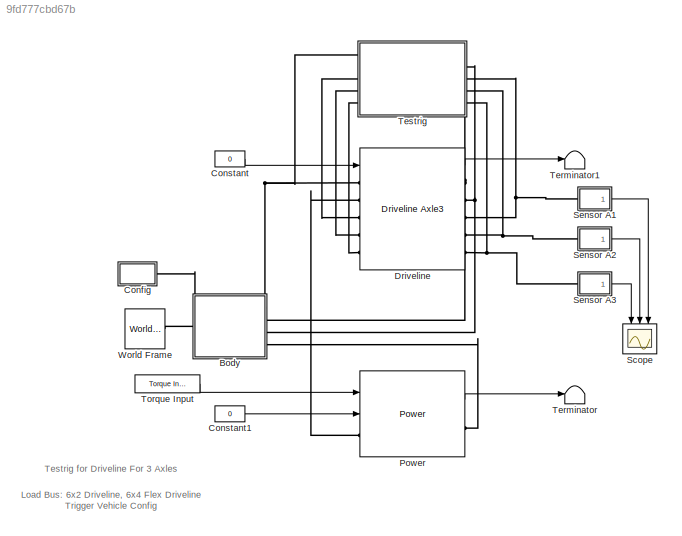
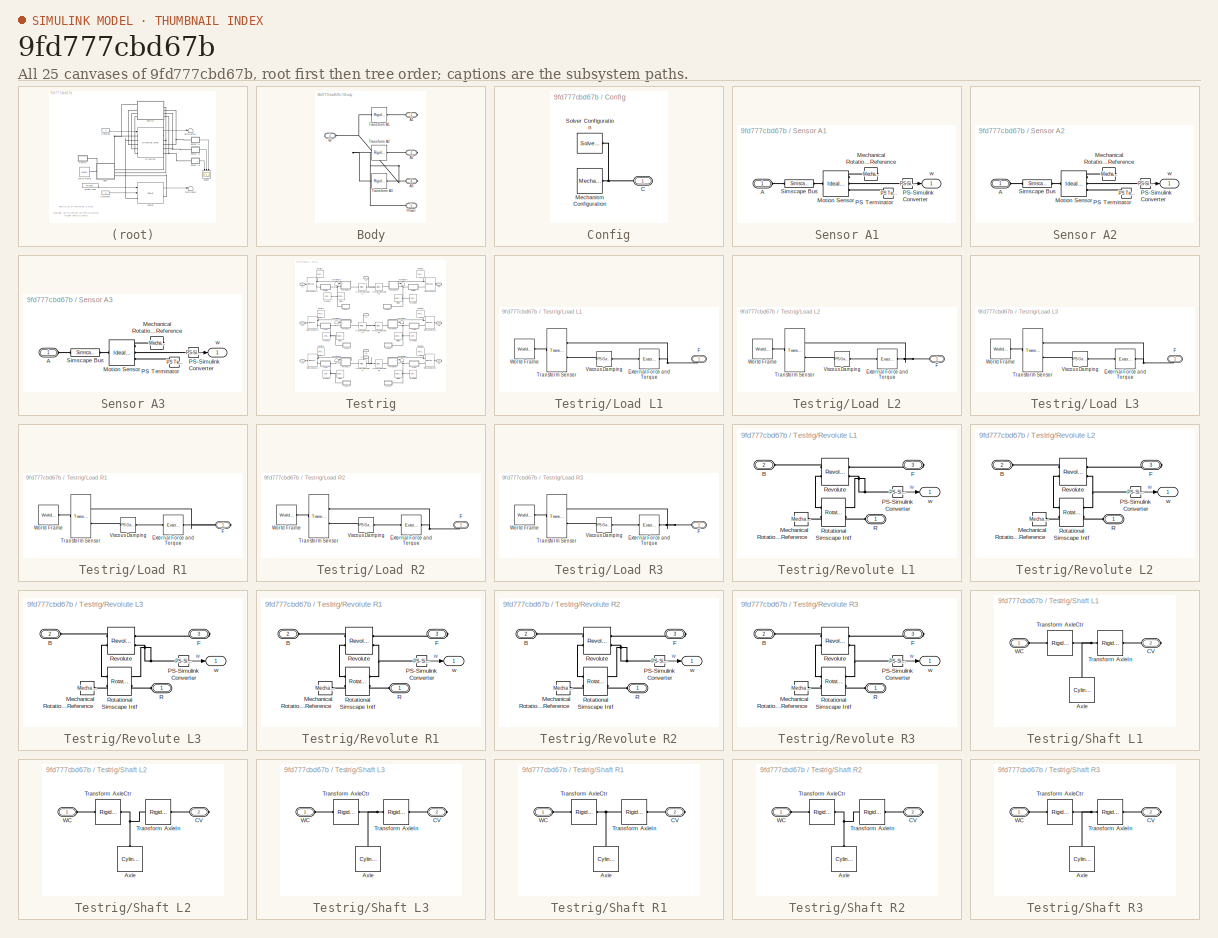
[diagram: thumbnail index - all 25 canvases of the model, root first then tree order]
MODEL slx_9fd777cbd67b
KIND model
CONFIG AbsTol = auto
CONFIG EnableMultiTasking = off
CONFIG FixedStep = auto
CONFIG MaxStep = auto
CONFIG MinStep = auto
CONFIG RelTol = 1e-3
CONFIG SampleTimeConstraint = Unconstrained
CONFIG SolverName = ode23t
CONFIG StartTime = 0.0
CONFIG StopTime = 10.0
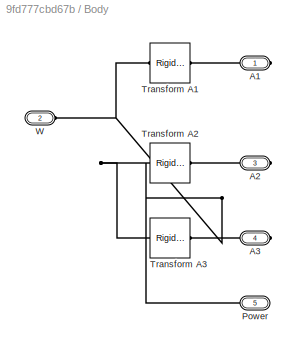
BLOCK [SubSystem] Body
  Ports = [0, 0, 0, 0, 0, 1, 4]
  RequestExecContextInheritance = off
BLOCK [PMIOPort] Body/ Power
  Port = 5
  Side = Right
BLOCK [PMIOPort] Body/A1
  Side = Right
BLOCK [PMIOPort] Body/A2
  Port = 3
  Side = Right
BLOCK [PMIOPort] Body/A3
  Port = 4
  Side = Right
BLOCK [Reference] Body/Transform A1   REF=sm_lib/Frames and
Transforms/Rigid
Transform
  Ports = [0, 0, 0, 0, 0, 1, 1]
  SourceBlock = sm_lib/Frames and\nTransforms/Rigid\nTransform
  SourceProductBaseCode = MS
  SourceType = Rigid\nTransform
BLOCK [Reference] Body/Transform A2  REF=sm_lib/Frames and
Transforms/Rigid
Transform
  Ports = [0, 0, 0, 0, 0, 1, 1]
  SourceBlock = sm_lib/Frames and\nTransforms/Rigid\nTransform
  SourceProductBaseCode = MS
  SourceType = Rigid\nTransform
BLOCK [Reference] Body/Transform A3  REF=sm_lib/Frames and
Transforms/Rigid
Transform
  Ports = [0, 0, 0, 0, 0, 1, 1]
  SourceBlock = sm_lib/Frames and\nTransforms/Rigid\nTransform
  SourceProductBaseCode = MS
  SourceType = Rigid\nTransform
BLOCK [PMIOPort] Body/W
  Port = 2
  Side = Left
BLOCK [SubSystem] Config
  Ports = [0, 0, 0, 0, 0, 0, 1]
  RequestExecContextInheritance = off
BLOCK [PMIOPort] Config/C
  Side = Right
BLOCK [Reference] Config/Mechanism Configuration  REF=sm_lib/Utilities/Mechanism
Configuration
  Ports = [0, 0, 0, 0, 0, 0, 1]
  SourceBlock = sm_lib/Utilities/Mechanism\nConfiguration
  SourceProductBaseCode = MS
  SourceType = Mechanism\nConfiguration
BLOCK [Reference] Config/Solver Configuration  REF=nesl_utility/Solver
Configuration
  Ports = [0, 0, 0, 0, 0, 0, 1]
  SourceBlock = nesl_utility/Solver\nConfiguration
  SourceProductBaseCode = SS,PW,VE
  SourceType = Solver\nConfiguration
BLOCK [Constant] Constant
  Value = 0
BLOCK [Constant] Constant1
  Value = 0
BLOCK [Reference] Driveline  REF=Driveline_Axle3/Driveline Axle3
  AttributesFormatString = %<ActiveVariant>
  Ports = [1, 1, 0, 0, 0, 5, 5]
  SourceBlock = Driveline_Axle3/Driveline Axle3
  SourceType = Variants for Driveline
BLOCK [Reference] Power  REF=Power_Systems/Power
  AttributesFormatString = %<ActiveVariant>
  Ports = [2, 1, 0, 0, 0, 1, 1]
  SourceBlock = Power_Systems/Power
  SourceType = Variants for Power
BLOCK [Scope] Scope
  Floating = off
  NameLocation = left
  NumInputPorts = 3
  Ports = [3]
  ScopeSpecificationString = Simulink.scopes.TimeScopeBlockCfg('CurrentConfiguration', extmgr.ConfigurationSet(extmgr.Configuration('Core','General UI',true),extmgr.Configuration('Core','Source UI',true),extmgr.Configuration('Sources','WiredSimulink',true),extmgr.Configuration('Visuals','Time Domain',true,'SerializedDisplays',{struct('MinYLimReal','-40.00000','MaxYLimReal','360.00000','YLabelReal','','MinYLimMag','0.00000','M...<+1700ch>
BLOCK [SubSystem] Sensor A1
  Ports = [0, 1, 0, 0, 0, 1]
  RequestExecContextInheritance = off
BLOCK [PMIOPort] Sensor A1/A
  Side = Left
BLOCK [Reference] Sensor A1/Mechanical Rotational Reference  REF=fl_lib/Mechanical/Rotational Elements/Mechanical
Rotational Reference
  NameLocation = top
  Ports = [0, 0, 0, 0, 0, 1]
  SourceBlock = fl_lib/Mechanical/Rotational Elements/Mechanical\nRotational Reference
  SourceProductBaseCode = PW,SS,VE
  SourceType = Mechanical\nRotational Reference
BLOCK [Reference] Sensor A1/Motion Sensor  REF=fl_lib/Mechanical/Mechanical Sensors/Ideal Rotational
Motion Sensor
  Ports = [0, 0, 0, 0, 0, 1, 3]
  SourceBlock = fl_lib/Mechanical/Mechanical Sensors/Ideal Rotational\nMotion Sensor
  SourceProductBaseCode = PW,SS,VE
  SourceType = Ideal Rotational\nMotion Sensor
BLOCK [Reference] Sensor A1/PS Terminator  REF=fl_lib/Physical Signals/Sinks/PS Terminator
  Ports = [0, 0, 0, 0, 0, 1]
  SourceBlock = fl_lib/Physical Signals/Sinks/PS Terminator
  SourceProductBaseCode = PW,SS,VE
  SourceType = PS Terminator
BLOCK [Reference] Sensor A1/PS-Simulink Converter  REF=nesl_utility/PS-Simulink
Converter
  Ports = [0, 1, 0, 0, 0, 1]
  SourceBlock = nesl_utility/PS-Simulink\nConverter
  SourceProductBaseCode = SS,PW,VE
  SourceType = PS-Simulink\nConverter
BLOCK [SimscapeBus] Sensor A1/Simscape Bus
  HierarchyStrings = Axle1D
  Ports = [0, 0, 0, 0, 0, 1, 1]
BLOCK [Outport] Sensor A1/w
  VectorParamsAs1DForOutWhenUnconnected = off
BLOCK [SubSystem] Sensor A2
  Ports = [0, 1, 0, 0, 0, 1]
  RequestExecContextInheritance = off
BLOCK [PMIOPort] Sensor A2/A
  Side = Left
BLOCK [Reference] Sensor A2/Mechanical Rotational Reference  REF=fl_lib/Mechanical/Rotational Elements/Mechanical
Rotational Reference
  NameLocation = top
  Ports = [0, 0, 0, 0, 0, 1]
  SourceBlock = fl_lib/Mechanical/Rotational Elements/Mechanical\nRotational Reference
  SourceProductBaseCode = PW,SS,VE
  SourceType = Mechanical\nRotational Reference
BLOCK [Reference] Sensor A2/Motion Sensor  REF=fl_lib/Mechanical/Mechanical Sensors/Ideal Rotational
Motion Sensor
  Ports = [0, 0, 0, 0, 0, 1, 3]
  SourceBlock = fl_lib/Mechanical/Mechanical Sensors/Ideal Rotational\nMotion Sensor
  SourceProductBaseCode = PW,SS,VE
  SourceType = Ideal Rotational\nMotion Sensor
BLOCK [Reference] Sensor A2/PS Terminator  REF=fl_lib/Physical Signals/Sinks/PS Terminator
  Ports = [0, 0, 0, 0, 0, 1]
  SourceBlock = fl_lib/Physical Signals/Sinks/PS Terminator
  SourceProductBaseCode = PW,SS,VE
  SourceType = PS Terminator
BLOCK [Reference] Sensor A2/PS-Simulink Converter  REF=nesl_utility/PS-Simulink
Converter
  Ports = [0, 1, 0, 0, 0, 1]
  SourceBlock = nesl_utility/PS-Simulink\nConverter
  SourceProductBaseCode = SS,PW,VE
  SourceType = PS-Simulink\nConverter
BLOCK [SimscapeBus] Sensor A2/Simscape Bus
  HierarchyStrings = Axle1D
  Ports = [0, 0, 0, 0, 0, 1, 1]
BLOCK [Outport] Sensor A2/w
  VectorParamsAs1DForOutWhenUnconnected = off
BLOCK [SubSystem] Sensor A3
  Ports = [0, 1, 0, 0, 0, 1]
  RequestExecContextInheritance = off
BLOCK [PMIOPort] Sensor A3/A
  Side = Left
BLOCK [Reference] Sensor A3/Mechanical Rotational Reference  REF=fl_lib/Mechanical/Rotational Elements/Mechanical
Rotational Reference
  NameLocation = top
  Ports = [0, 0, 0, 0, 0, 1]
  SourceBlock = fl_lib/Mechanical/Rotational Elements/Mechanical\nRotational Reference
  SourceProductBaseCode = PW,SS,VE
  SourceType = Mechanical\nRotational Reference
BLOCK [Reference] Sensor A3/Motion Sensor  REF=fl_lib/Mechanical/Mechanical Sensors/Ideal Rotational
Motion Sensor
  Ports = [0, 0, 0, 0, 0, 1, 3]
  SourceBlock = fl_lib/Mechanical/Mechanical Sensors/Ideal Rotational\nMotion Sensor
  SourceProductBaseCode = PW,SS,VE
  SourceType = Ideal Rotational\nMotion Sensor
BLOCK [Reference] Sensor A3/PS Terminator  REF=fl_lib/Physical Signals/Sinks/PS Terminator
  Ports = [0, 0, 0, 0, 0, 1]
  SourceBlock = fl_lib/Physical Signals/Sinks/PS Terminator
  SourceProductBaseCode = PW,SS,VE
  SourceType = PS Terminator
BLOCK [Reference] Sensor A3/PS-Simulink Converter  REF=nesl_utility/PS-Simulink
Converter
  Ports = [0, 1, 0, 0, 0, 1]
  SourceBlock = nesl_utility/PS-Simulink\nConverter
  SourceProductBaseCode = SS,PW,VE
  SourceType = PS-Simulink\nConverter
BLOCK [SimscapeBus] Sensor A3/Simscape Bus
  HierarchyStrings = Axle1D
  Ports = [0, 0, 0, 0, 0, 1, 1]
BLOCK [Outport] Sensor A3/w
  VectorParamsAs1DForOutWhenUnconnected = off
BLOCK [Terminator] Terminator
BLOCK [Terminator] Terminator1
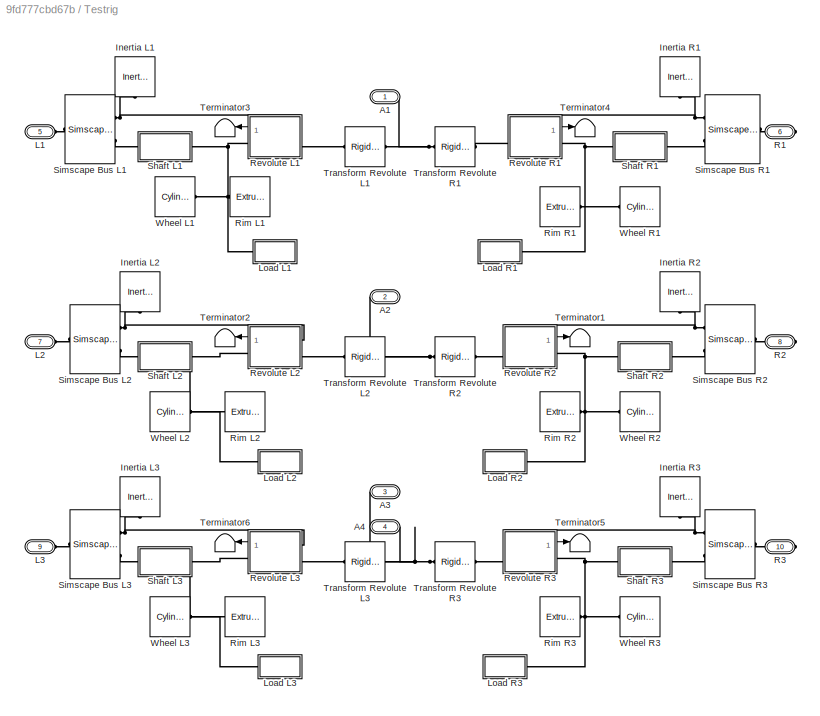
BLOCK [SubSystem] Testrig
  Ports = [0, 0, 0, 0, 0, 5, 5]
  RequestExecContextInheritance = off
BLOCK [PMIOPort] Testrig/A1
  Side = Left
BLOCK [PMIOPort] Testrig/A2
  Port = 2
  Side = Right
BLOCK [PMIOPort] Testrig/A3
  Port = 3
  Side = Right
BLOCK [PMIOPort] Testrig/A4
  Port = 4
  Side = Left
BLOCK [Reference] Testrig/Inertia L1  REF=fl_lib/Mechanical/Rotational Elements/Inertia
  NameLocation = right
  Ports = [0, 0, 0, 0, 0, 1]
  SourceBlock = fl_lib/Mechanical/Rotational Elements/Inertia
  SourceProductBaseCode = PW,SS,VE
  SourceType = Inertia
BLOCK [Reference] Testrig/Inertia L2  REF=fl_lib/Mechanical/Rotational Elements/Inertia
  NameLocation = right
  Ports = [0, 0, 0, 0, 0, 1]
  SourceBlock = fl_lib/Mechanical/Rotational Elements/Inertia
  SourceProductBaseCode = PW,SS,VE
  SourceType = Inertia
BLOCK [Reference] Testrig/Inertia L3  REF=fl_lib/Mechanical/Rotational Elements/Inertia
  NameLocation = right
  Ports = [0, 0, 0, 0, 0, 1]
  SourceBlock = fl_lib/Mechanical/Rotational Elements/Inertia
  SourceProductBaseCode = PW,SS,VE
  SourceType = Inertia
BLOCK [Reference] Testrig/Inertia R1  REF=fl_lib/Mechanical/Rotational Elements/Inertia
  NameLocation = left
  Ports = [0, 0, 0, 0, 0, 1]
  SourceBlock = fl_lib/Mechanical/Rotational Elements/Inertia
  SourceProductBaseCode = PW,SS,VE
  SourceType = Inertia
BLOCK [Reference] Testrig/Inertia R2  REF=fl_lib/Mechanical/Rotational Elements/Inertia
  NameLocation = left
  Ports = [0, 0, 0, 0, 0, 1]
  SourceBlock = fl_lib/Mechanical/Rotational Elements/Inertia
  SourceProductBaseCode = PW,SS,VE
  SourceType = Inertia
BLOCK [Reference] Testrig/Inertia R3  REF=fl_lib/Mechanical/Rotational Elements/Inertia
  NameLocation = left
  Ports = [0, 0, 0, 0, 0, 1]
  SourceBlock = fl_lib/Mechanical/Rotational Elements/Inertia
  SourceProductBaseCode = PW,SS,VE
  SourceType = Inertia
BLOCK [PMIOPort] Testrig/L1
  Port = 5
  Side = Left
BLOCK [PMIOPort] Testrig/L2
  Port = 7
  Side = Left
BLOCK [PMIOPort] Testrig/L3
  Port = 9
  Side = Left
BLOCK [SubSystem] Testrig/Load L1
  Ports = [0, 0, 0, 0, 0, 0, 1]
  RequestExecContextInheritance = off
BLOCK [Reference] Testrig/Load L1/External Force and Torque  REF=sm_lib/Forces and
Torques/External Force
and Torque
  Ports = [0, 0, 0, 0, 0, 1, 1]
  SourceBlock = sm_lib/Forces and\nTorques/External Force\nand Torque
  SourceProductBaseCode = MS
  SourceType = External Force\nand Torque
BLOCK [PMIOPort] Testrig/Load L1/F
  Side = Right
BLOCK [Reference] Testrig/Load L1/Transform Sensor  REF=sm_lib/Frames and
Transforms/Transform
Sensor
  Ports = [0, 0, 0, 0, 0, 1, 2]
  SourceBlock = sm_lib/Frames and\nTransforms/Transform\nSensor
  SourceProductBaseCode = MS
  SourceType = Transform\nSensor
BLOCK [Reference] Testrig/Load L1/Viscous Damping  REF=fl_ps_legacy_lib/Legacy Physical
Signals/Functions/PS Gain
  Ports = [0, 0, 0, 0, 0, 1, 1]
  SourceBlock = fl_ps_legacy_lib/Legacy Physical\nSignals/Functions/PS Gain
  SourceProductBaseCode = PW,SS,VE
  SourceType = PS Gain
BLOCK [Reference] Testrig/Load L1/World Frame  REF=sm_lib/Frames and
Transforms/World Frame
  Ports = [0, 0, 0, 0, 0, 0, 1]
  SourceBlock = sm_lib/Frames and\nTransforms/World Frame
  SourceProductBaseCode = MS
  SourceType = World Frame
BLOCK [SubSystem] Testrig/Load L2
  Ports = [0, 0, 0, 0, 0, 0, 1]
  RequestExecContextInheritance = off
BLOCK [Reference] Testrig/Load L2/External Force and Torque  REF=sm_lib/Forces and
Torques/External Force
and Torque
  Ports = [0, 0, 0, 0, 0, 1, 1]
  SourceBlock = sm_lib/Forces and\nTorques/External Force\nand Torque
  SourceProductBaseCode = MS
  SourceType = External Force\nand Torque
BLOCK [PMIOPort] Testrig/Load L2/F
  Side = Right
BLOCK [Reference] Testrig/Load L2/Transform Sensor  REF=sm_lib/Frames and
Transforms/Transform
Sensor
  Ports = [0, 0, 0, 0, 0, 1, 2]
  SourceBlock = sm_lib/Frames and\nTransforms/Transform\nSensor
  SourceProductBaseCode = MS
  SourceType = Transform\nSensor
BLOCK [Reference] Testrig/Load L2/Viscous Damping  REF=fl_ps_legacy_lib/Legacy Physical
Signals/Functions/PS Gain
  Ports = [0, 0, 0, 0, 0, 1, 1]
  SourceBlock = fl_ps_legacy_lib/Legacy Physical\nSignals/Functions/PS Gain
  SourceProductBaseCode = PW,SS,VE
  SourceType = PS Gain
BLOCK [Reference] Testrig/Load L2/World Frame  REF=sm_lib/Frames and
Transforms/World Frame
  Ports = [0, 0, 0, 0, 0, 0, 1]
  SourceBlock = sm_lib/Frames and\nTransforms/World Frame
  SourceProductBaseCode = MS
  SourceType = World Frame
BLOCK [SubSystem] Testrig/Load L3
  Ports = [0, 0, 0, 0, 0, 0, 1]
  RequestExecContextInheritance = off
BLOCK [Reference] Testrig/Load L3/External Force and Torque  REF=sm_lib/Forces and
Torques/External Force
and Torque
  Ports = [0, 0, 0, 0, 0, 1, 1]
  SourceBlock = sm_lib/Forces and\nTorques/External Force\nand Torque
  SourceProductBaseCode = MS
  SourceType = External Force\nand Torque
BLOCK [PMIOPort] Testrig/Load L3/F
  Side = Right
BLOCK [Reference] Testrig/Load L3/Transform Sensor  REF=sm_lib/Frames and
Transforms/Transform
Sensor
  Ports = [0, 0, 0, 0, 0, 1, 2]
  SourceBlock = sm_lib/Frames and\nTransforms/Transform\nSensor
  SourceProductBaseCode = MS
  SourceType = Transform\nSensor
BLOCK [Reference] Testrig/Load L3/Viscous Damping  REF=fl_ps_legacy_lib/Legacy Physical
Signals/Functions/PS Gain
  Ports = [0, 0, 0, 0, 0, 1, 1]
  SourceBlock = fl_ps_legacy_lib/Legacy Physical\nSignals/Functions/PS Gain
  SourceProductBaseCode = PW,SS,VE
  SourceType = PS Gain
BLOCK [Reference] Testrig/Load L3/World Frame  REF=sm_lib/Frames and
Transforms/World Frame
  Ports = [0, 0, 0, 0, 0, 0, 1]
  SourceBlock = sm_lib/Frames and\nTransforms/World Frame
  SourceProductBaseCode = MS
  SourceType = World Frame
BLOCK [SubSystem] Testrig/Load R1
  Ports = [0, 0, 0, 0, 0, 0, 1]
  RequestExecContextInheritance = off
BLOCK [Reference] Testrig/Load R1/External Force and Torque  REF=sm_lib/Forces and
Torques/External Force
and Torque
  Ports = [0, 0, 0, 0, 0, 1, 1]
  SourceBlock = sm_lib/Forces and\nTorques/External Force\nand Torque
  SourceProductBaseCode = MS
  SourceType = External Force\nand Torque
BLOCK [PMIOPort] Testrig/Load R1/F
  Side = Right
BLOCK [Reference] Testrig/Load R1/Transform Sensor  REF=sm_lib/Frames and
Transforms/Transform
Sensor
  Ports = [0, 0, 0, 0, 0, 1, 2]
  SourceBlock = sm_lib/Frames and\nTransforms/Transform\nSensor
  SourceProductBaseCode = MS
  SourceType = Transform\nSensor
BLOCK [Reference] Testrig/Load R1/Viscous Damping  REF=fl_ps_legacy_lib/Legacy Physical
Signals/Functions/PS Gain
  Ports = [0, 0, 0, 0, 0, 1, 1]
  SourceBlock = fl_ps_legacy_lib/Legacy Physical\nSignals/Functions/PS Gain
  SourceProductBaseCode = PW,SS,VE
  SourceType = PS Gain
BLOCK [Reference] Testrig/Load R1/World Frame  REF=sm_lib/Frames and
Transforms/World Frame
  Ports = [0, 0, 0, 0, 0, 0, 1]
  SourceBlock = sm_lib/Frames and\nTransforms/World Frame
  SourceProductBaseCode = MS
  SourceType = World Frame
BLOCK [SubSystem] Testrig/Load R2
  Ports = [0, 0, 0, 0, 0, 0, 1]
  RequestExecContextInheritance = off
BLOCK [Reference] Testrig/Load R2/External Force and Torque  REF=sm_lib/Forces and
Torques/External Force
and Torque
  Ports = [0, 0, 0, 0, 0, 1, 1]
  SourceBlock = sm_lib/Forces and\nTorques/External Force\nand Torque
  SourceProductBaseCode = MS
  SourceType = External Force\nand Torque
BLOCK [PMIOPort] Testrig/Load R2/F
  Side = Right
BLOCK [Reference] Testrig/Load R2/Transform Sensor  REF=sm_lib/Frames and
Transforms/Transform
Sensor
  Ports = [0, 0, 0, 0, 0, 1, 2]
  SourceBlock = sm_lib/Frames and\nTransforms/Transform\nSensor
  SourceProductBaseCode = MS
  SourceType = Transform\nSensor
BLOCK [Reference] Testrig/Load R2/Viscous Damping  REF=fl_ps_legacy_lib/Legacy Physical
Signals/Functions/PS Gain
  Ports = [0, 0, 0, 0, 0, 1, 1]
  SourceBlock = fl_ps_legacy_lib/Legacy Physical\nSignals/Functions/PS Gain
  SourceProductBaseCode = PW,SS,VE
  SourceType = PS Gain
BLOCK [Reference] Testrig/Load R2/World Frame  REF=sm_lib/Frames and
Transforms/World Frame
  Ports = [0, 0, 0, 0, 0, 0, 1]
  SourceBlock = sm_lib/Frames and\nTransforms/World Frame
  SourceProductBaseCode = MS
  SourceType = World Frame
BLOCK [SubSystem] Testrig/Load R3
  Ports = [0, 0, 0, 0, 0, 0, 1]
  RequestExecContextInheritance = off
BLOCK [Reference] Testrig/Load R3/External Force and Torque  REF=sm_lib/Forces and
Torques/External Force
and Torque
  Ports = [0, 0, 0, 0, 0, 1, 1]
  SourceBlock = sm_lib/Forces and\nTorques/External Force\nand Torque
  SourceProductBaseCode = MS
  SourceType = External Force\nand Torque
BLOCK [PMIOPort] Testrig/Load R3/F
  Side = Right
BLOCK [Reference] Testrig/Load R3/Transform Sensor  REF=sm_lib/Frames and
Transforms/Transform
Sensor
  Ports = [0, 0, 0, 0, 0, 1, 2]
  SourceBlock = sm_lib/Frames and\nTransforms/Transform\nSensor
  SourceProductBaseCode = MS
  SourceType = Transform\nSensor
BLOCK [Reference] Testrig/Load R3/Viscous Damping  REF=fl_ps_legacy_lib/Legacy Physical
Signals/Functions/PS Gain
  Ports = [0, 0, 0, 0, 0, 1, 1]
  SourceBlock = fl_ps_legacy_lib/Legacy Physical\nSignals/Functions/PS Gain
  SourceProductBaseCode = PW,SS,VE
  SourceType = PS Gain
BLOCK [Reference] Testrig/Load R3/World Frame  REF=sm_lib/Frames and
Transforms/World Frame
  Ports = [0, 0, 0, 0, 0, 0, 1]
  SourceBlock = sm_lib/Frames and\nTransforms/World Frame
  SourceProductBaseCode = MS
  SourceType = World Frame
BLOCK [PMIOPort] Testrig/R1
  Port = 6
  Side = Right
BLOCK [PMIOPort] Testrig/R2
  Port = 8
  Side = Right
BLOCK [PMIOPort] Testrig/R3
  Port = 10
  Side = Right
BLOCK [SubSystem] Testrig/Revolute L1
  Ports = [0, 1, 0, 0, 0, 2, 1]
  RequestExecContextInheritance = off
BLOCK [PMIOPort] Testrig/Revolute L1/B
  Port = 2
  Side = Left
BLOCK [PMIOPort] Testrig/Revolute L1/F
  Port = 3
  Side = Right
BLOCK [Reference] Testrig/Revolute L1/Mechanical Rotational Reference  REF=fl_lib/Mechanical/Rotational Elements/Mechanical
Rotational Reference
  Ports = [0, 0, 0, 0, 0, 1]
  SourceBlock = fl_lib/Mechanical/Rotational Elements/Mechanical\nRotational Reference
  SourceProductBaseCode = PW,SS,VE
  SourceType = Mechanical\nRotational Reference
BLOCK [Reference] Testrig/Revolute L1/PS-Simulink Converter  REF=nesl_utility/PS-Simulink
Converter
  Ports = [0, 1, 0, 0, 0, 1]
  SourceBlock = nesl_utility/PS-Simulink\nConverter
  SourceProductBaseCode = SS,PW,VE
  SourceType = PS-Simulink\nConverter
BLOCK [PMIOPort] Testrig/Revolute L1/R
  Side = Left
BLOCK [Reference] Testrig/Revolute L1/Revolute  REF=sm_lib/Joints/Revolute Joint
  Ports = [0, 0, 0, 0, 0, 2, 2]
  SourceBlock = sm_lib/Joints/Revolute Joint
  SourceProductBaseCode = MS
  SourceType = Revolute Joint
BLOCK [Reference] Testrig/Revolute L1/Rotational Simscape Intf  REF=sm_car_lib/Utilities/Rotational  (lib defined in slx_05426f0848b6, slx_5dc2867fb1c9)
Simscape Intf
  Ports = [0, 0, 0, 0, 0, 2, 2]
  SourceBlock = sm_car_lib/Utilities/Rotational\nSimscape Intf
  SourceType = SubSystem
BLOCK [Outport] Testrig/Revolute L1/w
  VectorParamsAs1DForOutWhenUnconnected = off
BLOCK [SubSystem] Testrig/Revolute L2
  Ports = [0, 1, 0, 0, 0, 2, 1]
  RequestExecContextInheritance = off
BLOCK [PMIOPort] Testrig/Revolute L2/B
  Port = 2
  Side = Left
BLOCK [PMIOPort] Testrig/Revolute L2/F
  Port = 3
  Side = Right
BLOCK [Reference] Testrig/Revolute L2/Mechanical Rotational Reference  REF=fl_lib/Mechanical/Rotational Elements/Mechanical
Rotational Reference
  Ports = [0, 0, 0, 0, 0, 1]
  SourceBlock = fl_lib/Mechanical/Rotational Elements/Mechanical\nRotational Reference
  SourceProductBaseCode = PW,SS,VE
  SourceType = Mechanical\nRotational Reference
BLOCK [Reference] Testrig/Revolute L2/PS-Simulink Converter  REF=nesl_utility/PS-Simulink
Converter
  Ports = [0, 1, 0, 0, 0, 1]
  SourceBlock = nesl_utility/PS-Simulink\nConverter
  SourceProductBaseCode = SS,PW,VE
  SourceType = PS-Simulink\nConverter
BLOCK [PMIOPort] Testrig/Revolute L2/R
  Side = Left
BLOCK [Reference] Testrig/Revolute L2/Revolute  REF=sm_lib/Joints/Revolute Joint
  Ports = [0, 0, 0, 0, 0, 2, 2]
  SourceBlock = sm_lib/Joints/Revolute Joint
  SourceProductBaseCode = MS
  SourceType = Revolute Joint
BLOCK [Reference] Testrig/Revolute L2/Rotational Simscape Intf  REF=sm_car_lib/Utilities/Rotational  (lib defined in slx_05426f0848b6, slx_5dc2867fb1c9)
Simscape Intf
  Ports = [0, 0, 0, 0, 0, 2, 2]
  SourceBlock = sm_car_lib/Utilities/Rotational\nSimscape Intf
  SourceType = SubSystem
BLOCK [Outport] Testrig/Revolute L2/w
  VectorParamsAs1DForOutWhenUnconnected = off
BLOCK [SubSystem] Testrig/Revolute L3
  Ports = [0, 1, 0, 0, 0, 2, 1]
  RequestExecContextInheritance = off
BLOCK [PMIOPort] Testrig/Revolute L3/B
  Port = 2
  Side = Left
BLOCK [PMIOPort] Testrig/Revolute L3/F
  Port = 3
  Side = Right
BLOCK [Reference] Testrig/Revolute L3/Mechanical Rotational Reference  REF=fl_lib/Mechanical/Rotational Elements/Mechanical
Rotational Reference
  Ports = [0, 0, 0, 0, 0, 1]
  SourceBlock = fl_lib/Mechanical/Rotational Elements/Mechanical\nRotational Reference
  SourceProductBaseCode = PW,SS,VE
  SourceType = Mechanical\nRotational Reference
BLOCK [Reference] Testrig/Revolute L3/PS-Simulink Converter  REF=nesl_utility/PS-Simulink
Converter
  Ports = [0, 1, 0, 0, 0, 1]
  SourceBlock = nesl_utility/PS-Simulink\nConverter
  SourceProductBaseCode = SS,PW,VE
  SourceType = PS-Simulink\nConverter
BLOCK [PMIOPort] Testrig/Revolute L3/R
  Side = Left
BLOCK [Reference] Testrig/Revolute L3/Revolute  REF=sm_lib/Joints/Revolute Joint
  Ports = [0, 0, 0, 0, 0, 2, 2]
  SourceBlock = sm_lib/Joints/Revolute Joint
  SourceProductBaseCode = MS
  SourceType = Revolute Joint
BLOCK [Reference] Testrig/Revolute L3/Rotational Simscape Intf  REF=sm_car_lib/Utilities/Rotational  (lib defined in slx_05426f0848b6, slx_5dc2867fb1c9)
Simscape Intf
  Ports = [0, 0, 0, 0, 0, 2, 2]
  SourceBlock = sm_car_lib/Utilities/Rotational\nSimscape Intf
  SourceType = SubSystem
BLOCK [Outport] Testrig/Revolute L3/w
  VectorParamsAs1DForOutWhenUnconnected = off
BLOCK [SubSystem] Testrig/Revolute R1
  Ports = [0, 1, 0, 0, 0, 2, 1]
  RequestExecContextInheritance = off
BLOCK [PMIOPort] Testrig/Revolute R1/B
  Port = 2
  Side = Left
BLOCK [PMIOPort] Testrig/Revolute R1/F
  Port = 3
  Side = Right
BLOCK [Reference] Testrig/Revolute R1/Mechanical Rotational Reference  REF=fl_lib/Mechanical/Rotational Elements/Mechanical
Rotational Reference
  Ports = [0, 0, 0, 0, 0, 1]
  SourceBlock = fl_lib/Mechanical/Rotational Elements/Mechanical\nRotational Reference
  SourceProductBaseCode = PW,SS,VE
  SourceType = Mechanical\nRotational Reference
BLOCK [Reference] Testrig/Revolute R1/PS-Simulink Converter  REF=nesl_utility/PS-Simulink
Converter
  Ports = [0, 1, 0, 0, 0, 1]
  SourceBlock = nesl_utility/PS-Simulink\nConverter
  SourceProductBaseCode = SS,PW,VE
  SourceType = PS-Simulink\nConverter
BLOCK [PMIOPort] Testrig/Revolute R1/R
  Side = Left
BLOCK [Reference] Testrig/Revolute R1/Revolute  REF=sm_lib/Joints/Revolute Joint
  Ports = [0, 0, 0, 0, 0, 2, 2]
  SourceBlock = sm_lib/Joints/Revolute Joint
  SourceProductBaseCode = MS
  SourceType = Revolute Joint
BLOCK [Reference] Testrig/Revolute R1/Rotational Simscape Intf  REF=sm_car_lib/Utilities/Rotational  (lib defined in slx_05426f0848b6, slx_5dc2867fb1c9)
Simscape Intf
  Ports = [0, 0, 0, 0, 0, 2, 2]
  SourceBlock = sm_car_lib/Utilities/Rotational\nSimscape Intf
  SourceType = SubSystem
BLOCK [Outport] Testrig/Revolute R1/w
  VectorParamsAs1DForOutWhenUnconnected = off
BLOCK [SubSystem] Testrig/Revolute R2
  Ports = [0, 1, 0, 0, 0, 2, 1]
  RequestExecContextInheritance = off
BLOCK [PMIOPort] Testrig/Revolute R2/B
  Port = 2
  Side = Left
BLOCK [PMIOPort] Testrig/Revolute R2/F
  Port = 3
  Side = Right
BLOCK [Reference] Testrig/Revolute R2/Mechanical Rotational Reference  REF=fl_lib/Mechanical/Rotational Elements/Mechanical
Rotational Reference
  Ports = [0, 0, 0, 0, 0, 1]
  SourceBlock = fl_lib/Mechanical/Rotational Elements/Mechanical\nRotational Reference
  SourceProductBaseCode = PW,SS,VE
  SourceType = Mechanical\nRotational Reference
BLOCK [Reference] Testrig/Revolute R2/PS-Simulink Converter  REF=nesl_utility/PS-Simulink
Converter
  Ports = [0, 1, 0, 0, 0, 1]
  SourceBlock = nesl_utility/PS-Simulink\nConverter
  SourceProductBaseCode = SS,PW,VE
  SourceType = PS-Simulink\nConverter
BLOCK [PMIOPort] Testrig/Revolute R2/R
  Side = Left
BLOCK [Reference] Testrig/Revolute R2/Revolute  REF=sm_lib/Joints/Revolute Joint
  Ports = [0, 0, 0, 0, 0, 2, 2]
  SourceBlock = sm_lib/Joints/Revolute Joint
  SourceProductBaseCode = MS
  SourceType = Revolute Joint
BLOCK [Reference] Testrig/Revolute R2/Rotational Simscape Intf  REF=sm_car_lib/Utilities/Rotational  (lib defined in slx_05426f0848b6, slx_5dc2867fb1c9)
Simscape Intf
  Ports = [0, 0, 0, 0, 0, 2, 2]
  SourceBlock = sm_car_lib/Utilities/Rotational\nSimscape Intf
  SourceType = SubSystem
BLOCK [Outport] Testrig/Revolute R2/w
  VectorParamsAs1DForOutWhenUnconnected = off
BLOCK [SubSystem] Testrig/Revolute R3
  Ports = [0, 1, 0, 0, 0, 2, 1]
  RequestExecContextInheritance = off
BLOCK [PMIOPort] Testrig/Revolute R3/B
  Port = 2
  Side = Left
BLOCK [PMIOPort] Testrig/Revolute R3/F
  Port = 3
  Side = Right
BLOCK [Reference] Testrig/Revolute R3/Mechanical Rotational Reference  REF=fl_lib/Mechanical/Rotational Elements/Mechanical
Rotational Reference
  Ports = [0, 0, 0, 0, 0, 1]
  SourceBlock = fl_lib/Mechanical/Rotational Elements/Mechanical\nRotational Reference
  SourceProductBaseCode = PW,SS,VE
  SourceType = Mechanical\nRotational Reference
BLOCK [Reference] Testrig/Revolute R3/PS-Simulink Converter  REF=nesl_utility/PS-Simulink
Converter
  Ports = [0, 1, 0, 0, 0, 1]
  SourceBlock = nesl_utility/PS-Simulink\nConverter
  SourceProductBaseCode = SS,PW,VE
  SourceType = PS-Simulink\nConverter
BLOCK [PMIOPort] Testrig/Revolute R3/R
  Side = Left
BLOCK [Reference] Testrig/Revolute R3/Revolute  REF=sm_lib/Joints/Revolute Joint
  Ports = [0, 0, 0, 0, 0, 2, 2]
  SourceBlock = sm_lib/Joints/Revolute Joint
  SourceProductBaseCode = MS
  SourceType = Revolute Joint
BLOCK [Reference] Testrig/Revolute R3/Rotational Simscape Intf  REF=sm_car_lib/Utilities/Rotational  (lib defined in slx_05426f0848b6, slx_5dc2867fb1c9)
Simscape Intf
  Ports = [0, 0, 0, 0, 0, 2, 2]
  SourceBlock = sm_car_lib/Utilities/Rotational\nSimscape Intf
  SourceType = SubSystem
BLOCK [Outport] Testrig/Revolute R3/w
  VectorParamsAs1DForOutWhenUnconnected = off
BLOCK [Reference] Testrig/Rim L1  REF=sm_lib/Body Elements/Extruded Solid
  Ports = [0, 0, 0, 0, 0, 0, 1]
  SourceBlock = sm_lib/Body Elements/Extruded Solid
  SourceProductBaseCode = MS
  SourceType = Extruded Solid
BLOCK [Reference] Testrig/Rim L2  REF=sm_lib/Body Elements/Extruded Solid
  Ports = [0, 0, 0, 0, 0, 0, 1]
  SourceBlock = sm_lib/Body Elements/Extruded Solid
  SourceProductBaseCode = MS
  SourceType = Extruded Solid
BLOCK [Reference] Testrig/Rim L3  REF=sm_lib/Body Elements/Extruded Solid
  Ports = [0, 0, 0, 0, 0, 0, 1]
  SourceBlock = sm_lib/Body Elements/Extruded Solid
  SourceProductBaseCode = MS
  SourceType = Extruded Solid
BLOCK [Reference] Testrig/Rim R1  REF=sm_lib/Body Elements/Extruded Solid
  Ports = [0, 0, 0, 0, 0, 0, 1]
  SourceBlock = sm_lib/Body Elements/Extruded Solid
  SourceProductBaseCode = MS
  SourceType = Extruded Solid
BLOCK [Reference] Testrig/Rim R2  REF=sm_lib/Body Elements/Extruded Solid
  Ports = [0, 0, 0, 0, 0, 0, 1]
  SourceBlock = sm_lib/Body Elements/Extruded Solid
  SourceProductBaseCode = MS
  SourceType = Extruded Solid
BLOCK [Reference] Testrig/Rim R3  REF=sm_lib/Body Elements/Extruded Solid
  Ports = [0, 0, 0, 0, 0, 0, 1]
  SourceBlock = sm_lib/Body Elements/Extruded Solid
  SourceProductBaseCode = MS
  SourceType = Extruded Solid
BLOCK [SubSystem] Testrig/Shaft L1
  Ports = [0, 0, 0, 0, 0, 1, 1]
  RequestExecContextInheritance = off
BLOCK [Reference] Testrig/Shaft L1/Axle  REF=sm_lib/Body Elements/Cylindrical Solid
  NameLocation = left
  Ports = [0, 0, 0, 0, 0, 0, 1]
  SourceBlock = sm_lib/Body Elements/Cylindrical Solid
  SourceProductBaseCode = MS
  SourceType = Cylindrical Solid
BLOCK [PMIOPort] Testrig/Shaft L1/CV
  Port = 2
  Side = Right
BLOCK [Reference] Testrig/Shaft L1/Transform AxleCtr  REF=sm_lib/Frames and
Transforms/Rigid
Transform
  Ports = [0, 0, 0, 0, 0, 1, 1]
  SourceBlock = sm_lib/Frames and\nTransforms/Rigid\nTransform
  SourceProductBaseCode = MS
  SourceType = Rigid\nTransform
BLOCK [Reference] Testrig/Shaft L1/Transform AxleIn  REF=sm_lib/Frames and
Transforms/Rigid
Transform
  Ports = [0, 0, 0, 0, 0, 1, 1]
  SourceBlock = sm_lib/Frames and\nTransforms/Rigid\nTransform
  SourceProductBaseCode = MS
  SourceType = Rigid\nTransform
BLOCK [PMIOPort] Testrig/Shaft L1/WC
  Side = Left
BLOCK [SubSystem] Testrig/Shaft L2
  Ports = [0, 0, 0, 0, 0, 1, 1]
  RequestExecContextInheritance = off
BLOCK [Reference] Testrig/Shaft L2/Axle  REF=sm_lib/Body Elements/Cylindrical Solid
  NameLocation = left
  Ports = [0, 0, 0, 0, 0, 0, 1]
  SourceBlock = sm_lib/Body Elements/Cylindrical Solid
  SourceProductBaseCode = MS
  SourceType = Cylindrical Solid
BLOCK [PMIOPort] Testrig/Shaft L2/CV
  Port = 2
  Side = Right
BLOCK [Reference] Testrig/Shaft L2/Transform AxleCtr  REF=sm_lib/Frames and
Transforms/Rigid
Transform
  Ports = [0, 0, 0, 0, 0, 1, 1]
  SourceBlock = sm_lib/Frames and\nTransforms/Rigid\nTransform
  SourceProductBaseCode = MS
  SourceType = Rigid\nTransform
BLOCK [Reference] Testrig/Shaft L2/Transform AxleIn  REF=sm_lib/Frames and
Transforms/Rigid
Transform
  Ports = [0, 0, 0, 0, 0, 1, 1]
  SourceBlock = sm_lib/Frames and\nTransforms/Rigid\nTransform
  SourceProductBaseCode = MS
  SourceType = Rigid\nTransform
BLOCK [PMIOPort] Testrig/Shaft L2/WC
  Side = Left
BLOCK [SubSystem] Testrig/Shaft L3
  Ports = [0, 0, 0, 0, 0, 1, 1]
  RequestExecContextInheritance = off
BLOCK [Reference] Testrig/Shaft L3/Axle  REF=sm_lib/Body Elements/Cylindrical Solid
  NameLocation = left
  Ports = [0, 0, 0, 0, 0, 0, 1]
  SourceBlock = sm_lib/Body Elements/Cylindrical Solid
  SourceProductBaseCode = MS
  SourceType = Cylindrical Solid
BLOCK [PMIOPort] Testrig/Shaft L3/CV
  Port = 2
  Side = Right
BLOCK [Reference] Testrig/Shaft L3/Transform AxleCtr  REF=sm_lib/Frames and
Transforms/Rigid
Transform
  Ports = [0, 0, 0, 0, 0, 1, 1]
  SourceBlock = sm_lib/Frames and\nTransforms/Rigid\nTransform
  SourceProductBaseCode = MS
  SourceType = Rigid\nTransform
BLOCK [Reference] Testrig/Shaft L3/Transform AxleIn  REF=sm_lib/Frames and
Transforms/Rigid
Transform
  Ports = [0, 0, 0, 0, 0, 1, 1]
  SourceBlock = sm_lib/Frames and\nTransforms/Rigid\nTransform
  SourceProductBaseCode = MS
  SourceType = Rigid\nTransform
BLOCK [PMIOPort] Testrig/Shaft L3/WC
  Side = Left
BLOCK [SubSystem] Testrig/Shaft R1
  Ports = [0, 0, 0, 0, 0, 1, 1]
  RequestExecContextInheritance = off
BLOCK [Reference] Testrig/Shaft R1/Axle  REF=sm_lib/Body Elements/Cylindrical Solid
  NameLocation = left
  Ports = [0, 0, 0, 0, 0, 0, 1]
  SourceBlock = sm_lib/Body Elements/Cylindrical Solid
  SourceProductBaseCode = MS
  SourceType = Cylindrical Solid
BLOCK [PMIOPort] Testrig/Shaft R1/CV
  Port = 2
  Side = Right
BLOCK [Reference] Testrig/Shaft R1/Transform AxleCtr  REF=sm_lib/Frames and
Transforms/Rigid
Transform
  Ports = [0, 0, 0, 0, 0, 1, 1]
  SourceBlock = sm_lib/Frames and\nTransforms/Rigid\nTransform
  SourceProductBaseCode = MS
  SourceType = Rigid\nTransform
BLOCK [Reference] Testrig/Shaft R1/Transform AxleIn  REF=sm_lib/Frames and
Transforms/Rigid
Transform
  Ports = [0, 0, 0, 0, 0, 1, 1]
  SourceBlock = sm_lib/Frames and\nTransforms/Rigid\nTransform
  SourceProductBaseCode = MS
  SourceType = Rigid\nTransform
BLOCK [PMIOPort] Testrig/Shaft R1/WC
  Side = Left
BLOCK [SubSystem] Testrig/Shaft R2
  Ports = [0, 0, 0, 0, 0, 1, 1]
  RequestExecContextInheritance = off
BLOCK [Reference] Testrig/Shaft R2/Axle  REF=sm_lib/Body Elements/Cylindrical Solid
  NameLocation = left
  Ports = [0, 0, 0, 0, 0, 0, 1]
  SourceBlock = sm_lib/Body Elements/Cylindrical Solid
  SourceProductBaseCode = MS
  SourceType = Cylindrical Solid
BLOCK [PMIOPort] Testrig/Shaft R2/CV
  Port = 2
  Side = Right
BLOCK [Reference] Testrig/Shaft R2/Transform AxleCtr  REF=sm_lib/Frames and
Transforms/Rigid
Transform
  Ports = [0, 0, 0, 0, 0, 1, 1]
  SourceBlock = sm_lib/Frames and\nTransforms/Rigid\nTransform
  SourceProductBaseCode = MS
  SourceType = Rigid\nTransform
BLOCK [Reference] Testrig/Shaft R2/Transform AxleIn  REF=sm_lib/Frames and
Transforms/Rigid
Transform
  Ports = [0, 0, 0, 0, 0, 1, 1]
  SourceBlock = sm_lib/Frames and\nTransforms/Rigid\nTransform
  SourceProductBaseCode = MS
  SourceType = Rigid\nTransform
BLOCK [PMIOPort] Testrig/Shaft R2/WC
  Side = Left
BLOCK [SubSystem] Testrig/Shaft R3
  Ports = [0, 0, 0, 0, 0, 1, 1]
  RequestExecContextInheritance = off
BLOCK [Reference] Testrig/Shaft R3/Axle  REF=sm_lib/Body Elements/Cylindrical Solid
  NameLocation = left
  Ports = [0, 0, 0, 0, 0, 0, 1]
  SourceBlock = sm_lib/Body Elements/Cylindrical Solid
  SourceProductBaseCode = MS
  SourceType = Cylindrical Solid
BLOCK [PMIOPort] Testrig/Shaft R3/CV
  Port = 2
  Side = Right
BLOCK [Reference] Testrig/Shaft R3/Transform AxleCtr  REF=sm_lib/Frames and
Transforms/Rigid
Transform
  Ports = [0, 0, 0, 0, 0, 1, 1]
  SourceBlock = sm_lib/Frames and\nTransforms/Rigid\nTransform
  SourceProductBaseCode = MS
  SourceType = Rigid\nTransform
BLOCK [Reference] Testrig/Shaft R3/Transform AxleIn  REF=sm_lib/Frames and
Transforms/Rigid
Transform
  Ports = [0, 0, 0, 0, 0, 1, 1]
  SourceBlock = sm_lib/Frames and\nTransforms/Rigid\nTransform
  SourceProductBaseCode = MS
  SourceType = Rigid\nTransform
BLOCK [PMIOPort] Testrig/Shaft R3/WC
  Side = Left
BLOCK [SimscapeBus] Testrig/Simscape Bus L1
  HierarchyStrings = Axle1D;AxleIn
  Ports = [0, 0, 0, 0, 0, 2, 1]
BLOCK [SimscapeBus] Testrig/Simscape Bus L2
  HierarchyStrings = Axle1D;AxleIn
  Ports = [0, 0, 0, 0, 0, 2, 1]
BLOCK [SimscapeBus] Testrig/Simscape Bus L3
  HierarchyStrings = Axle1D;AxleIn
  Ports = [0, 0, 0, 0, 0, 2, 1]
BLOCK [SimscapeBus] Testrig/Simscape Bus R1
  HierarchyStrings = Axle1D;AxleIn
  Ports = [0, 0, 0, 0, 0, 2, 1]
BLOCK [SimscapeBus] Testrig/Simscape Bus R2
  HierarchyStrings = Axle1D;AxleIn
  Ports = [0, 0, 0, 0, 0, 2, 1]
BLOCK [SimscapeBus] Testrig/Simscape Bus R3
  HierarchyStrings = Axle1D;AxleIn
  Ports = [0, 0, 0, 0, 0, 2, 1]
BLOCK [Terminator] Testrig/Terminator1
BLOCK [Terminator] Testrig/Terminator2
BLOCK [Terminator] Testrig/Terminator3
BLOCK [Terminator] Testrig/Terminator4
BLOCK [Terminator] Testrig/Terminator5
BLOCK [Terminator] Testrig/Terminator6
BLOCK [Reference] Testrig/Transform Revolute L1  REF=sm_lib/Frames and
Transforms/Rigid
Transform
  Ports = [0, 0, 0, 0, 0, 1, 1]
  SourceBlock = sm_lib/Frames and\nTransforms/Rigid\nTransform
  SourceProductBaseCode = MS
  SourceType = Rigid\nTransform
BLOCK [Reference] Testrig/Transform Revolute L2  REF=sm_lib/Frames and
Transforms/Rigid
Transform
  Ports = [0, 0, 0, 0, 0, 1, 1]
  SourceBlock = sm_lib/Frames and\nTransforms/Rigid\nTransform
  SourceProductBaseCode = MS
  SourceType = Rigid\nTransform
BLOCK [Reference] Testrig/Transform Revolute L3  REF=sm_lib/Frames and
Transforms/Rigid
Transform
  Ports = [0, 0, 0, 0, 0, 1, 1]
  SourceBlock = sm_lib/Frames and\nTransforms/Rigid\nTransform
  SourceProductBaseCode = MS
  SourceType = Rigid\nTransform
BLOCK [Reference] Testrig/Transform Revolute R1  REF=sm_lib/Frames and
Transforms/Rigid
Transform
  Ports = [0, 0, 0, 0, 0, 1, 1]
  SourceBlock = sm_lib/Frames and\nTransforms/Rigid\nTransform
  SourceProductBaseCode = MS
  SourceType = Rigid\nTransform
BLOCK [Reference] Testrig/Transform Revolute R2  REF=sm_lib/Frames and
Transforms/Rigid
Transform
  Ports = [0, 0, 0, 0, 0, 1, 1]
  SourceBlock = sm_lib/Frames and\nTransforms/Rigid\nTransform
  SourceProductBaseCode = MS
  SourceType = Rigid\nTransform
BLOCK [Reference] Testrig/Transform Revolute R3  REF=sm_lib/Frames and
Transforms/Rigid
Transform
  Ports = [0, 0, 0, 0, 0, 1, 1]
  SourceBlock = sm_lib/Frames and\nTransforms/Rigid\nTransform
  SourceProductBaseCode = MS
  SourceType = Rigid\nTransform
BLOCK [Reference] Testrig/Wheel L1  REF=sm_lib/Body Elements/Cylindrical Solid
  Ports = [0, 0, 0, 0, 0, 0, 1]
  SourceBlock = sm_lib/Body Elements/Cylindrical Solid
  SourceProductBaseCode = MS
  SourceType = Cylindrical Solid
BLOCK [Reference] Testrig/Wheel L2  REF=sm_lib/Body Elements/Cylindrical Solid
  Ports = [0, 0, 0, 0, 0, 0, 1]
  SourceBlock = sm_lib/Body Elements/Cylindrical Solid
  SourceProductBaseCode = MS
  SourceType = Cylindrical Solid
BLOCK [Reference] Testrig/Wheel L3  REF=sm_lib/Body Elements/Cylindrical Solid
  Ports = [0, 0, 0, 0, 0, 0, 1]
  SourceBlock = sm_lib/Body Elements/Cylindrical Solid
  SourceProductBaseCode = MS
  SourceType = Cylindrical Solid
BLOCK [Reference] Testrig/Wheel R1  REF=sm_lib/Body Elements/Cylindrical Solid
  Ports = [0, 0, 0, 0, 0, 0, 1]
  SourceBlock = sm_lib/Body Elements/Cylindrical Solid
  SourceProductBaseCode = MS
  SourceType = Cylindrical Solid
BLOCK [Reference] Testrig/Wheel R2  REF=sm_lib/Body Elements/Cylindrical Solid
  Ports = [0, 0, 0, 0, 0, 0, 1]
  SourceBlock = sm_lib/Body Elements/Cylindrical Solid
  SourceProductBaseCode = MS
  SourceType = Cylindrical Solid
BLOCK [Reference] Testrig/Wheel R3  REF=sm_lib/Body Elements/Cylindrical Solid
  Ports = [0, 0, 0, 0, 0, 0, 1]
  SourceBlock = sm_lib/Body Elements/Cylindrical Solid
  SourceProductBaseCode = MS
  SourceType = Cylindrical Solid
BLOCK [Reference] Torque Input  REF=sm_car_lib/Inputs/Control Bus/Torque Input  (lib defined in slx_05426f0848b6, slx_5dc2867fb1c9)
  Ports = [0, 1]
  SourceBlock = sm_car_lib/Inputs/Control Bus/Torque Input
BLOCK [Reference] World Frame  REF=sm_lib/Frames and
Transforms/World Frame
  Ports = [0, 0, 0, 0, 0, 0, 1]
  SourceBlock = sm_lib/Frames and\nTransforms/World Frame
  SourceProductBaseCode = MS
  SourceType = World Frame
ANNOTATION (root): Load Bus: 6x2 Driveline , 6x4 Flex Driveline Trigger Vehicle Config
ANNOTATION (root): Testrig for Driveline For 3 Axles
LINE Constant1:1 -> Power:2
LINE Constant:1 -> Driveline:1
LINE Driveline:1 -> Terminator1:1
LINE Power:1 -> Terminator:1
LINE Sensor A1/PS-Simulink Converter:1 -> Sensor A1/w:1
LINE Sensor A1:1 -> Scope:3
LINE Sensor A2/PS-Simulink Converter:1 -> Sensor A2/w:1
LINE Sensor A2:1 -> Scope:2
LINE Sensor A3/PS-Simulink Converter:1 -> Sensor A3/w:1
LINE Sensor A3:1 -> Scope:1
LINE Testrig/Revolute L1/PS-Simulink Converter:1 -> Testrig/Revolute L1/w:1
LINE Testrig/Revolute L1:1 -> Testrig/Terminator3:1
LINE Testrig/Revolute L2/PS-Simulink Converter:1 -> Testrig/Revolute L2/w:1
LINE Testrig/Revolute L2:1 -> Testrig/Terminator2:1
LINE Testrig/Revolute L3/PS-Simulink Converter:1 -> Testrig/Revolute L3/w:1
LINE Testrig/Revolute L3:1 -> Testrig/Terminator6:1
LINE Testrig/Revolute R1/PS-Simulink Converter:1 -> Testrig/Revolute R1/w:1
LINE Testrig/Revolute R1:1 -> Testrig/Terminator4:1
LINE Testrig/Revolute R2/PS-Simulink Converter:1 -> Testrig/Revolute R2/w:1
LINE Testrig/Revolute R2:1 -> Testrig/Terminator1:1
LINE Testrig/Revolute R3/PS-Simulink Converter:1 -> Testrig/Revolute R3/w:1
LINE Testrig/Revolute R3:1 -> Testrig/Terminator5:1
LINE Torque Input:1 -> Power:1
PNET net1: Body/ Power:RConn1 -- Body/Transform A1 :LConn1 -- Body/Transform A2:LConn1 -- Body/Transform A3:LConn1 -- Body/W:RConn1
PLINE Body/A1:RConn1 -- Body/Transform A1 :RConn1
PLINE Body/A2:RConn1 -- Body/Transform A2:RConn1
PLINE Body/A3:RConn1 -- Body/Transform A3:RConn1
PNET net2: Body:LConn1 -- Config:RConn1 -- World Frame:RConn1
PNET net3: Body:RConn1 -- Driveline:LConn1 -- Testrig:LConn1
PNET net4: Body:RConn2 -- Driveline:RConn1 -- Testrig:RConn1
PNET net5: Body:RConn3 -- Driveline:RConn2 -- Testrig:RConn2
PLINE Body:RConn4 -- Power:RConn1
PNET net6: Config/C:RConn1 -- Config/Mechanism Configuration:RConn1 -- Config/Solver Configuration:RConn1
PLINE Driveline:LConn2 -- Power:LConn1
PLINE Driveline:LConn3 -- Testrig:LConn3
PLINE Driveline:LConn4 -- Testrig:LConn4
PLINE Driveline:LConn5 -- Testrig:LConn5
PNET net7: Driveline:RConn3 -- Sensor A1:LConn1 -- Testrig:RConn3
PNET net8: Driveline:RConn4 -- Sensor A2:LConn1 -- Testrig:RConn4
PNET net9: Driveline:RConn5 -- Sensor A3:LConn1 -- Testrig:RConn5
PLINE Sensor A1/A:RConn1 -- Sensor A1/Simscape Bus:RConn1
PLINE Sensor A1/Mechanical Rotational Reference:LConn1 -- Sensor A1/Motion Sensor:RConn1
PLINE Sensor A1/Motion Sensor:LConn1 -- Sensor A1/Simscape Bus:LConn1
PLINE Sensor A1/Motion Sensor:RConn2 -- Sensor A1/PS-Simulink Converter:LConn1
PLINE Sensor A1/Motion Sensor:RConn3 -- Sensor A1/PS Terminator:LConn1
PLINE Sensor A2/A:RConn1 -- Sensor A2/Simscape Bus:RConn1
PLINE Sensor A2/Mechanical Rotational Reference:LConn1 -- Sensor A2/Motion Sensor:RConn1
PLINE Sensor A2/Motion Sensor:LConn1 -- Sensor A2/Simscape Bus:LConn1
PLINE Sensor A2/Motion Sensor:RConn2 -- Sensor A2/PS-Simulink Converter:LConn1
PLINE Sensor A2/Motion Sensor:RConn3 -- Sensor A2/PS Terminator:LConn1
PLINE Sensor A3/A:RConn1 -- Sensor A3/Simscape Bus:RConn1
PLINE Sensor A3/Mechanical Rotational Reference:LConn1 -- Sensor A3/Motion Sensor:RConn1
PLINE Sensor A3/Motion Sensor:LConn1 -- Sensor A3/Simscape Bus:LConn1
PLINE Sensor A3/Motion Sensor:RConn2 -- Sensor A3/PS-Simulink Converter:LConn1
PLINE Sensor A3/Motion Sensor:RConn3 -- Sensor A3/PS Terminator:LConn1
PNET net10: Testrig/A1:RConn1 -- Testrig/Transform Revolute L1:LConn1 -- Testrig/Transform Revolute R1:LConn1
PNET net11: Testrig/A2:RConn1 -- Testrig/Transform Revolute L2:LConn1 -- Testrig/Transform Revolute R2:LConn1
PNET net12: Testrig/A3:RConn1 -- Testrig/A4:RConn1 -- Testrig/Transform Revolute L3:LConn1 -- Testrig/Transform Revolute R3:LConn1
PNET net13: Testrig/Inertia L1:LConn1 -- Testrig/Revolute L1:LConn1 -- Testrig/Simscape Bus L1:LConn1
PNET net14: Testrig/Inertia L2:LConn1 -- Testrig/Revolute L2:LConn1 -- Testrig/Simscape Bus L2:LConn1
PNET net15: Testrig/Inertia L3:LConn1 -- Testrig/Revolute L3:LConn1 -- Testrig/Simscape Bus L3:LConn1
PNET net16: Testrig/Inertia R1:LConn1 -- Testrig/Revolute R1:LConn1 -- Testrig/Simscape Bus R1:LConn1
PNET net17: Testrig/Inertia R2:LConn1 -- Testrig/Revolute R2:LConn1 -- Testrig/Simscape Bus R2:LConn1
PNET net18: Testrig/Inertia R3:LConn1 -- Testrig/Revolute R3:LConn1 -- Testrig/Simscape Bus R3:LConn1
PLINE Testrig/L1:RConn1 -- Testrig/Simscape Bus L1:RConn1
PLINE Testrig/L2:RConn1 -- Testrig/Simscape Bus L2:RConn1
PLINE Testrig/L3:RConn1 -- Testrig/Simscape Bus L3:RConn1
PLINE Testrig/Load L1/External Force and Torque:LConn1 -- Testrig/Load L1/Viscous Damping:RConn1
PNET net19: Testrig/Load L1/External Force and Torque:RConn1 -- Testrig/Load L1/F:RConn1 -- Testrig/Load L1/Transform Sensor:RConn1
PLINE Testrig/Load L1/Transform Sensor:LConn1 -- Testrig/Load L1/World Frame:RConn1
PLINE Testrig/Load L1/Transform Sensor:RConn2 -- Testrig/Load L1/Viscous Damping:LConn1
PNET net20: Testrig/Load L1:RConn1 -- Testrig/Revolute L1:RConn1 -- Testrig/Rim L1:RConn1 -- Testrig/Shaft L1:LConn1 -- Testrig/Wheel L1:RConn1
PLINE Testrig/Load L2/External Force and Torque:LConn1 -- Testrig/Load L2/Viscous Damping:RConn1
PNET net21: Testrig/Load L2/External Force and Torque:RConn1 -- Testrig/Load L2/F:RConn1 -- Testrig/Load L2/Transform Sensor:RConn1
PLINE Testrig/Load L2/Transform Sensor:LConn1 -- Testrig/Load L2/World Frame:RConn1
PLINE Testrig/Load L2/Transform Sensor:RConn2 -- Testrig/Load L2/Viscous Damping:LConn1
PNET net22: Testrig/Load L2:RConn1 -- Testrig/Revolute L2:RConn1 -- Testrig/Rim L2:RConn1 -- Testrig/Shaft L2:LConn1 -- Testrig/Wheel L2:RConn1
PLINE Testrig/Load L3/External Force and Torque:LConn1 -- Testrig/Load L3/Viscous Damping:RConn1
PNET net23: Testrig/Load L3/External Force and Torque:RConn1 -- Testrig/Load L3/F:RConn1 -- Testrig/Load L3/Transform Sensor:RConn1
PLINE Testrig/Load L3/Transform Sensor:LConn1 -- Testrig/Load L3/World Frame:RConn1
PLINE Testrig/Load L3/Transform Sensor:RConn2 -- Testrig/Load L3/Viscous Damping:LConn1
PNET net24: Testrig/Load L3:RConn1 -- Testrig/Revolute L3:RConn1 -- Testrig/Rim L3:RConn1 -- Testrig/Shaft L3:LConn1 -- Testrig/Wheel L3:RConn1
PLINE Testrig/Load R1/External Force and Torque:LConn1 -- Testrig/Load R1/Viscous Damping:RConn1
PNET net25: Testrig/Load R1/External Force and Torque:RConn1 -- Testrig/Load R1/F:RConn1 -- Testrig/Load R1/Transform Sensor:RConn1
PLINE Testrig/Load R1/Transform Sensor:LConn1 -- Testrig/Load R1/World Frame:RConn1
PLINE Testrig/Load R1/Transform Sensor:RConn2 -- Testrig/Load R1/Viscous Damping:LConn1
PNET net26: Testrig/Load R1:RConn1 -- Testrig/Revolute R1:RConn1 -- Testrig/Rim R1:RConn1 -- Testrig/Shaft R1:LConn1 -- Testrig/Wheel R1:RConn1
PLINE Testrig/Load R2/External Force and Torque:LConn1 -- Testrig/Load R2/Viscous Damping:RConn1
PNET net27: Testrig/Load R2/External Force and Torque:RConn1 -- Testrig/Load R2/F:RConn1 -- Testrig/Load R2/Transform Sensor:RConn1
PLINE Testrig/Load R2/Transform Sensor:LConn1 -- Testrig/Load R2/World Frame:RConn1
PLINE Testrig/Load R2/Transform Sensor:RConn2 -- Testrig/Load R2/Viscous Damping:LConn1
PNET net28: Testrig/Load R2:RConn1 -- Testrig/Revolute R2:RConn1 -- Testrig/Rim R2:RConn1 -- Testrig/Shaft R2:LConn1 -- Testrig/Wheel R2:RConn1
PLINE Testrig/Load R3/External Force and Torque:LConn1 -- Testrig/Load R3/Viscous Damping:RConn1
PNET net29: Testrig/Load R3/External Force and Torque:RConn1 -- Testrig/Load R3/F:RConn1 -- Testrig/Load R3/Transform Sensor:RConn1
PLINE Testrig/Load R3/Transform Sensor:LConn1 -- Testrig/Load R3/World Frame:RConn1
PLINE Testrig/Load R3/Transform Sensor:RConn2 -- Testrig/Load R3/Viscous Damping:LConn1
PNET net30: Testrig/Load R3:RConn1 -- Testrig/Revolute R3:RConn1 -- Testrig/Rim R3:RConn1 -- Testrig/Shaft R3:LConn1 -- Testrig/Wheel R3:RConn1
PLINE Testrig/R1:RConn1 -- Testrig/Simscape Bus R1:RConn1
PLINE Testrig/R2:RConn1 -- Testrig/Simscape Bus R2:RConn1
PLINE Testrig/R3:RConn1 -- Testrig/Simscape Bus R3:RConn1
PLINE Testrig/Revolute L1/B:RConn1 -- Testrig/Revolute L1/Revolute:LConn1
PLINE Testrig/Revolute L1/F:RConn1 -- Testrig/Revolute L1/Revolute:RConn1
PLINE Testrig/Revolute L1/Mechanical Rotational Reference:LConn1 -- Testrig/Revolute L1/Rotational Simscape Intf:LConn2
PNET net31: Testrig/Revolute L1/PS-Simulink Converter:LConn1 -- Testrig/Revolute L1/Revolute:RConn2 -- Testrig/Revolute L1/Rotational Simscape Intf:RConn1
PLINE Testrig/Revolute L1/R:RConn1 -- Testrig/Revolute L1/Rotational Simscape Intf:RConn2
PLINE Testrig/Revolute L1/Revolute:LConn2 -- Testrig/Revolute L1/Rotational Simscape Intf:LConn1
PLINE Testrig/Revolute L1:LConn2 -- Testrig/Transform Revolute L1:RConn1
PLINE Testrig/Revolute L2/B:RConn1 -- Testrig/Revolute L2/Revolute:LConn1
PLINE Testrig/Revolute L2/F:RConn1 -- Testrig/Revolute L2/Revolute:RConn1
PLINE Testrig/Revolute L2/Mechanical Rotational Reference:LConn1 -- Testrig/Revolute L2/Rotational Simscape Intf:LConn2
PNET net32: Testrig/Revolute L2/PS-Simulink Converter:LConn1 -- Testrig/Revolute L2/Revolute:RConn2 -- Testrig/Revolute L2/Rotational Simscape Intf:RConn1
PLINE Testrig/Revolute L2/R:RConn1 -- Testrig/Revolute L2/Rotational Simscape Intf:RConn2
PLINE Testrig/Revolute L2/Revolute:LConn2 -- Testrig/Revolute L2/Rotational Simscape Intf:LConn1
PLINE Testrig/Revolute L2:LConn2 -- Testrig/Transform Revolute L2:RConn1
PLINE Testrig/Revolute L3/B:RConn1 -- Testrig/Revolute L3/Revolute:LConn1
PLINE Testrig/Revolute L3/F:RConn1 -- Testrig/Revolute L3/Revolute:RConn1
PLINE Testrig/Revolute L3/Mechanical Rotational Reference:LConn1 -- Testrig/Revolute L3/Rotational Simscape Intf:LConn2
PNET net33: Testrig/Revolute L3/PS-Simulink Converter:LConn1 -- Testrig/Revolute L3/Revolute:RConn2 -- Testrig/Revolute L3/Rotational Simscape Intf:RConn1
PLINE Testrig/Revolute L3/R:RConn1 -- Testrig/Revolute L3/Rotational Simscape Intf:RConn2
PLINE Testrig/Revolute L3/Revolute:LConn2 -- Testrig/Revolute L3/Rotational Simscape Intf:LConn1
PLINE Testrig/Revolute L3:LConn2 -- Testrig/Transform Revolute L3:RConn1
PLINE Testrig/Revolute R1/B:RConn1 -- Testrig/Revolute R1/Revolute:LConn1
PLINE Testrig/Revolute R1/F:RConn1 -- Testrig/Revolute R1/Revolute:RConn1
PLINE Testrig/Revolute R1/Mechanical Rotational Reference:LConn1 -- Testrig/Revolute R1/Rotational Simscape Intf:LConn2
PNET net34: Testrig/Revolute R1/PS-Simulink Converter:LConn1 -- Testrig/Revolute R1/Revolute:RConn2 -- Testrig/Revolute R1/Rotational Simscape Intf:RConn1
PLINE Testrig/Revolute R1/R:RConn1 -- Testrig/Revolute R1/Rotational Simscape Intf:RConn2
PLINE Testrig/Revolute R1/Revolute:LConn2 -- Testrig/Revolute R1/Rotational Simscape Intf:LConn1
PLINE Testrig/Revolute R1:LConn2 -- Testrig/Transform Revolute R1:RConn1
PLINE Testrig/Revolute R2/B:RConn1 -- Testrig/Revolute R2/Revolute:LConn1
PLINE Testrig/Revolute R2/F:RConn1 -- Testrig/Revolute R2/Revolute:RConn1
PLINE Testrig/Revolute R2/Mechanical Rotational Reference:LConn1 -- Testrig/Revolute R2/Rotational Simscape Intf:LConn2
PNET net35: Testrig/Revolute R2/PS-Simulink Converter:LConn1 -- Testrig/Revolute R2/Revolute:RConn2 -- Testrig/Revolute R2/Rotational Simscape Intf:RConn1
PLINE Testrig/Revolute R2/R:RConn1 -- Testrig/Revolute R2/Rotational Simscape Intf:RConn2
PLINE Testrig/Revolute R2/Revolute:LConn2 -- Testrig/Revolute R2/Rotational Simscape Intf:LConn1
PLINE Testrig/Revolute R2:LConn2 -- Testrig/Transform Revolute R2:RConn1
PLINE Testrig/Revolute R3/B:RConn1 -- Testrig/Revolute R3/Revolute:LConn1
PLINE Testrig/Revolute R3/F:RConn1 -- Testrig/Revolute R3/Revolute:RConn1
PLINE Testrig/Revolute R3/Mechanical Rotational Reference:LConn1 -- Testrig/Revolute R3/Rotational Simscape Intf:LConn2
PNET net36: Testrig/Revolute R3/PS-Simulink Converter:LConn1 -- Testrig/Revolute R3/Revolute:RConn2 -- Testrig/Revolute R3/Rotational Simscape Intf:RConn1
PLINE Testrig/Revolute R3/R:RConn1 -- Testrig/Revolute R3/Rotational Simscape Intf:RConn2
PLINE Testrig/Revolute R3/Revolute:LConn2 -- Testrig/Revolute R3/Rotational Simscape Intf:LConn1
PLINE Testrig/Revolute R3:LConn2 -- Testrig/Transform Revolute R3:RConn1
PNET net37: Testrig/Shaft L1/Axle:RConn1 -- Testrig/Shaft L1/Transform AxleCtr:RConn1 -- Testrig/Shaft L1/Transform AxleIn:LConn1
PLINE Testrig/Shaft L1/CV:RConn1 -- Testrig/Shaft L1/Transform AxleIn:RConn1
PLINE Testrig/Shaft L1/Transform AxleCtr:LConn1 -- Testrig/Shaft L1/WC:RConn1
PLINE Testrig/Shaft L1:RConn1 -- Testrig/Simscape Bus L1:LConn2
PNET net38: Testrig/Shaft L2/Axle:RConn1 -- Testrig/Shaft L2/Transform AxleCtr:RConn1 -- Testrig/Shaft L2/Transform AxleIn:LConn1
PLINE Testrig/Shaft L2/CV:RConn1 -- Testrig/Shaft L2/Transform AxleIn:RConn1
PLINE Testrig/Shaft L2/Transform AxleCtr:LConn1 -- Testrig/Shaft L2/WC:RConn1
PLINE Testrig/Shaft L2:RConn1 -- Testrig/Simscape Bus L2:LConn2
PNET net39: Testrig/Shaft L3/Axle:RConn1 -- Testrig/Shaft L3/Transform AxleCtr:RConn1 -- Testrig/Shaft L3/Transform AxleIn:LConn1
PLINE Testrig/Shaft L3/CV:RConn1 -- Testrig/Shaft L3/Transform AxleIn:RConn1
PLINE Testrig/Shaft L3/Transform AxleCtr:LConn1 -- Testrig/Shaft L3/WC:RConn1
PLINE Testrig/Shaft L3:RConn1 -- Testrig/Simscape Bus L3:LConn2
PNET net40: Testrig/Shaft R1/Axle:RConn1 -- Testrig/Shaft R1/Transform AxleCtr:RConn1 -- Testrig/Shaft R1/Transform AxleIn:LConn1
PLINE Testrig/Shaft R1/CV:RConn1 -- Testrig/Shaft R1/Transform AxleIn:RConn1
PLINE Testrig/Shaft R1/Transform AxleCtr:LConn1 -- Testrig/Shaft R1/WC:RConn1
PLINE Testrig/Shaft R1:RConn1 -- Testrig/Simscape Bus R1:LConn2
PNET net41: Testrig/Shaft R2/Axle:RConn1 -- Testrig/Shaft R2/Transform AxleCtr:RConn1 -- Testrig/Shaft R2/Transform AxleIn:LConn1
PLINE Testrig/Shaft R2/CV:RConn1 -- Testrig/Shaft R2/Transform AxleIn:RConn1
PLINE Testrig/Shaft R2/Transform AxleCtr:LConn1 -- Testrig/Shaft R2/WC:RConn1
PLINE Testrig/Shaft R2:RConn1 -- Testrig/Simscape Bus R2:LConn2
PNET net42: Testrig/Shaft R3/Axle:RConn1 -- Testrig/Shaft R3/Transform AxleCtr:RConn1 -- Testrig/Shaft R3/Transform AxleIn:LConn1
PLINE Testrig/Shaft R3/CV:RConn1 -- Testrig/Shaft R3/Transform AxleIn:RConn1
PLINE Testrig/Shaft R3/Transform AxleCtr:LConn1 -- Testrig/Shaft R3/WC:RConn1
PLINE Testrig/Shaft R3:RConn1 -- Testrig/Simscape Bus R3:LConn2
note: PNET lines group multi-terminal physical nets as a canonical sorted terminal list (undirected conserving connections); 2-terminal nets keep the pairwise PLINE form
